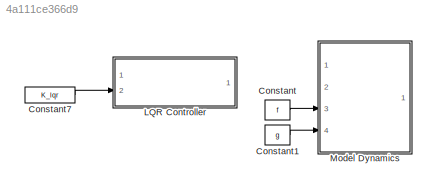
MODEL slx_4a111ce366d9
KIND model
CONFIG AbsTol = auto
CONFIG EnableMultiTasking = off
CONFIG FixedStep = auto
CONFIG MaxStep = auto
CONFIG MinStep = auto
CONFIG RelTol = 1e-3
CONFIG SampleTimeConstraint = Unconstrained
CONFIG Solver = VariableStepAuto
CONFIG SolverName = VariableStepAuto
CONFIG StartTime = 0.0
CONFIG StopTime = 10.0
BLOCK [Constant] Constant
  Value = f
BLOCK [Constant] Constant1
  Value = g
BLOCK [Constant] Constant7
  Value = K_lqr
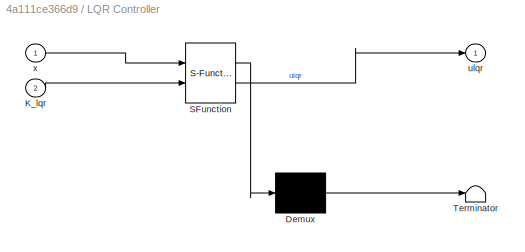
BLOCK [SubSystem] LQR Controller
  ErrorFcn = Stateflow.Translate.translate
  PermitHierarchicalResolution = ExplicitOnly
  Ports = [2, 1]
  SFBlockType = MATLAB Function
  TreatAsAtomicUnit = on
BLOCK [Demux] LQR Controller/ Demux 
  Outputs = 1
  Ports = [1, 1]
BLOCK [S-Function] LQR Controller/ SFunction 
  EnableBusSupport = on
  FunctionName = sf_sfun
  PortCounts = [2 2]
  Ports = [2, 2]
  SFcnIsStateOwnerBlock = off
  SFunctionDeploymentMode = off
  Tag = Stateflow S-Function model_lqr_TODO_2017b 4
BLOCK [Terminator] LQR Controller/ Terminator 
BLOCK [Inport] LQR Controller/K_lqr
  Port = 2
BLOCK [Outport] LQR Controller/ulqr
BLOCK [Inport] LQR Controller/x
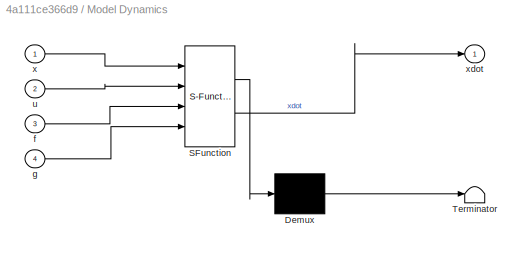
BLOCK [SubSystem] Model Dynamics
  ErrorFcn = Stateflow.Translate.translate
  PermitHierarchicalResolution = ExplicitOnly
  Ports = [4, 1]
  SFBlockType = MATLAB Function
  TreatAsAtomicUnit = on
BLOCK [Demux] Model Dynamics/ Demux 
  Outputs = 1
  Ports = [1, 1]
BLOCK [S-Function] Model Dynamics/ SFunction 
  EnableBusSupport = on
  FunctionName = sf_sfun
  PortCounts = [4 2]
  Ports = [4, 2]
  SFcnIsStateOwnerBlock = off
  SFunctionDeploymentMode = off
  Tag = Stateflow S-Function model_lqr_TODO_2017b 2
BLOCK [Terminator] Model Dynamics/ Terminator 
BLOCK [Inport] Model Dynamics/f
  Port = 3
BLOCK [Inport] Model Dynamics/g
  Port = 4
BLOCK [Inport] Model Dynamics/u
  Port = 2
BLOCK [Inport] Model Dynamics/x
BLOCK [Outport] Model Dynamics/xdot
LINE Constant1:1 -> Model Dynamics:4
LINE Constant7:1 -> LQR Controller:2
LINE Constant:1 -> Model Dynamics:3
CHART Model Dynamics states=1 transitions=1
  STATE_LABEL 'eML_blk_kernel()'
  STATE_LABEL 'SCRIPT:\nfunction xdot = fcn(x,u,f,g)\n    xdot = f*x + g*u;\nend'
CHART LQR Controller states=1 transitions=1
  STATE_LABEL 'eML_blk_kernel()'
  STATE_LABEL 'SCRIPT:\nfunction ulqr = fcn(x,K_lqr)\n    ulqr = -K_lqr*x;\nend\n'
